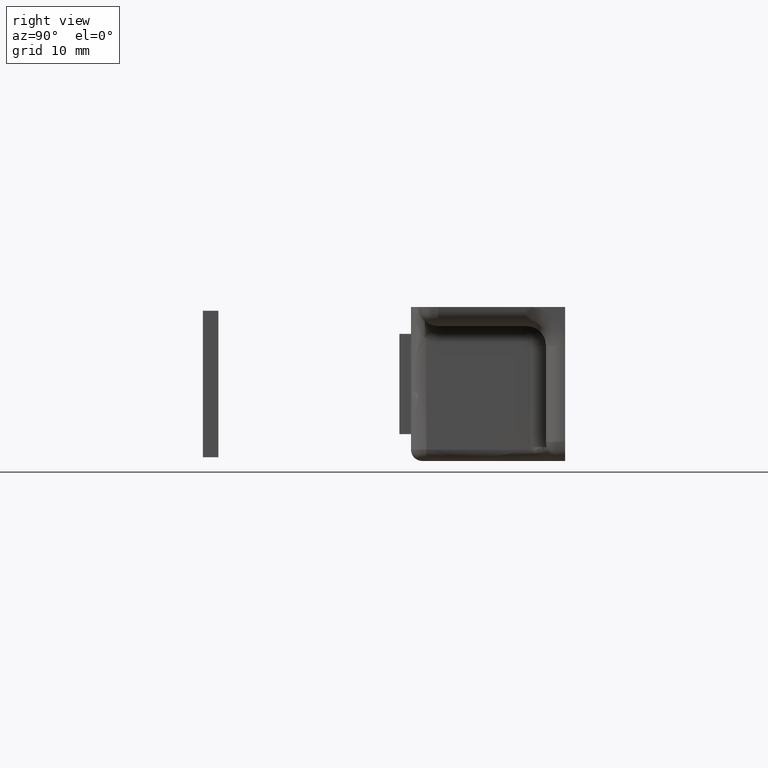
[diagram: clean part render]
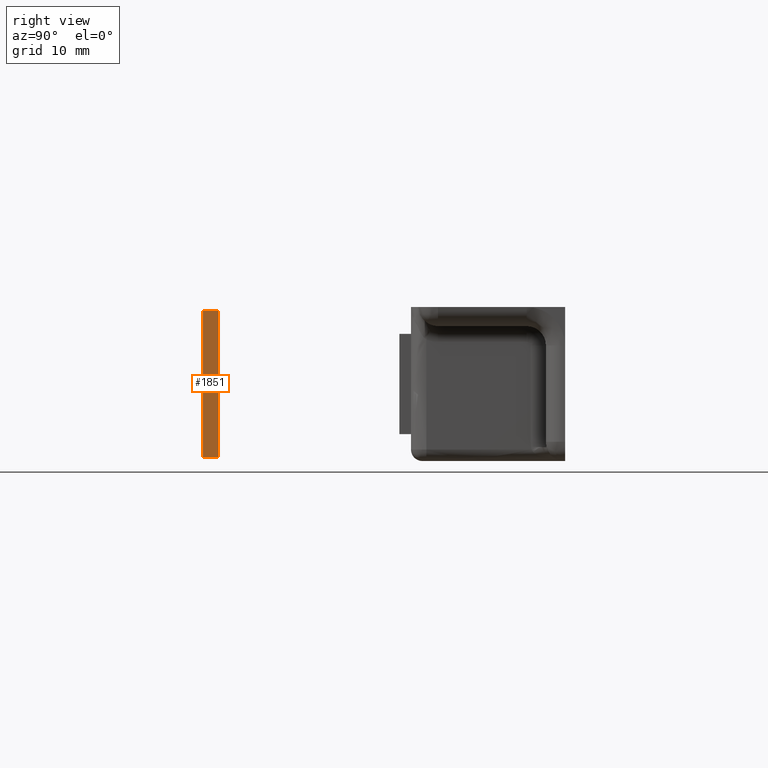
[diagram: same view with one face highlighted and labeled with its STEP entity id]
A machine part, right view. The second image highlights one B-rep face of the part: STEP entity #1851.
In plain terms, the highlighted face is a freeform B-spline surface patch.
Its self-contained STEP definition (entity closure, byte-faithful):
#1777=CARTESIAN_POINT('',(30.0,-45.0,9.500000000018700));
#1778=VERTEX_POINT('',#1777);
#1786=CARTESIAN_POINT('',(30.0,-45.0,-9.499999999981181));
#1787=VERTEX_POINT('',#1786);
#1788=CARTESIAN_POINT('',(30.0,-45.0,-9.499999999981181));
#1789=CARTESIAN_POINT('',(30.0,-45.0,9.500000000018700));
#1790=QUASI_UNIFORM_CURVE('',1,(#1788,#1789),.UNSPECIFIED.,.F.,.U.);
#1791=EDGE_CURVE('',#1787,#1778,#1790,.T.);
#1824=CARTESIAN_POINT('',(30.0,-47.099899996123611,-10.449049963155490));
#1825=CARTESIAN_POINT('',(30.0,-47.099899996123611,10.449050472812720));
#1826=CARTESIAN_POINT('',(30.0,-44.900099950232210,-10.449049963155490));
#1827=CARTESIAN_POINT('',(30.0,-44.900099950232210,10.449050472812720));
#1828=B_SPLINE_SURFACE_WITH_KNOTS('',1,1,((#1824,#1826),(#1825,#1827)),.UNSPECIFIED.,.F.,.F.,.U.,(2,2),(2,2),(0.0,20.898100435968210),(0.0,2.199800045891404),.UNSPECIFIED.);
#1829=ORIENTED_EDGE('',*,*,#1791,.T.);
#1830=CARTESIAN_POINT('',(30.0,-47.0,9.500000000018700));
#1831=VERTEX_POINT('',#1830);
#1832=CARTESIAN_POINT('',(30.0,-47.0,9.500000000018700));
#1833=CARTESIAN_POINT('',(30.0,-45.0,9.500000000018700));
#1834=QUASI_UNIFORM_CURVE('',1,(#1832,#1833),.UNSPECIFIED.,.F.,.U.);
#1835=EDGE_CURVE('',#1831,#1778,#1834,.T.);
#1836=ORIENTED_EDGE('',*,*,#1835,.F.);
#1837=CARTESIAN_POINT('',(30.0,-47.0,-9.499999999981181));
#1838=VERTEX_POINT('',#1837);
#1839=CARTESIAN_POINT('',(30.0,-47.0,-9.499999999981181));
#1840=CARTESIAN_POINT('',(30.0,-47.0,9.500000000018700));
#1841=QUASI_UNIFORM_CURVE('',1,(#1839,#1840),.UNSPECIFIED.,.F.,.U.);
#1842=EDGE_CURVE('',#1838,#1831,#1841,.T.);
#1843=ORIENTED_EDGE('',*,*,#1842,.F.);
#1844=CARTESIAN_POINT('',(30.0,-47.0,-9.499999999981181));
#1845=CARTESIAN_POINT('',(30.0,-45.0,-9.499999999981181));
#1846=QUASI_UNIFORM_CURVE('',1,(#1844,#1845),.UNSPECIFIED.,.F.,.U.);
#1847=EDGE_CURVE('',#1838,#1787,#1846,.T.);
#1848=ORIENTED_EDGE('',*,*,#1847,.T.);
#1849=EDGE_LOOP('',(#1829,#1836,#1843,#1848));
#1850=FACE_OUTER_BOUND('',#1849,.T.);
#1851=ADVANCED_FACE('',(#1850),#1828,.F.);